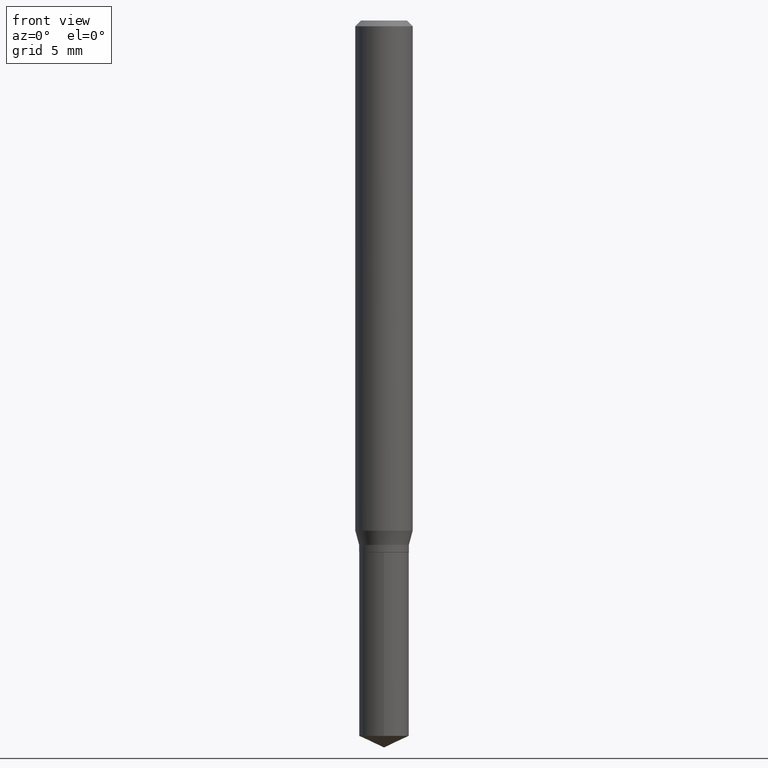
[diagram: clean part render]
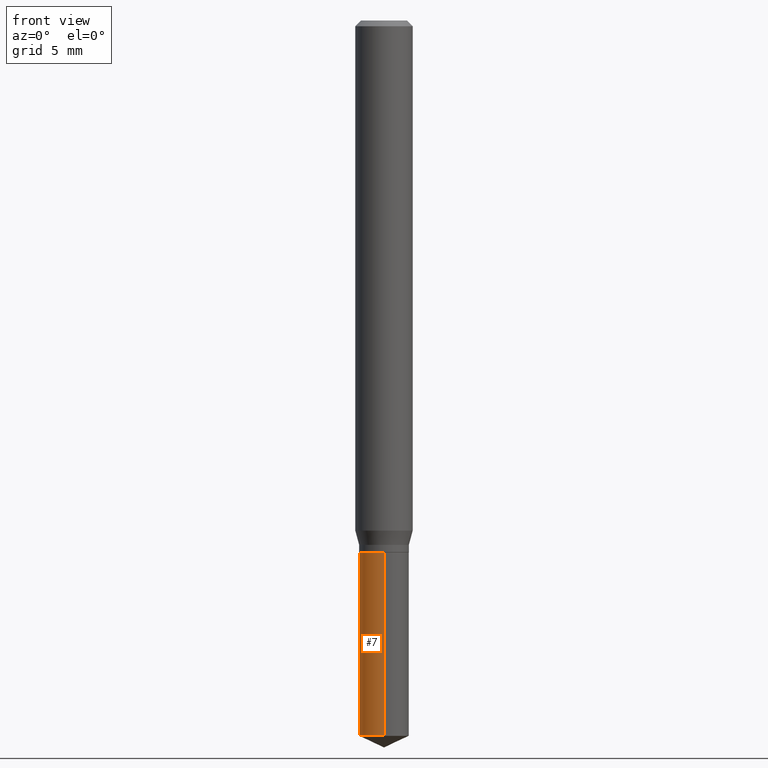
[diagram: same view with one face highlighted and labeled with its STEP entity id]
A machine part, front view. The second image highlights one B-rep face of the part: STEP entity #7.
In plain terms, the highlighted cylindrical surface (edge-blend (fillet) strip) has radius 1.3005 mm, axis along (-0, 0, 1).
Its self-contained STEP definition (entity closure, byte-faithful):
#7 = ADVANCED_FACE ( 'NONE', ( #148 ), #306, .T. ) ;
#30 = VERTEX_POINT ( 'NONE', #423 ) ;
#32 = DIRECTION ( 'NONE',  ( -6.982962677686265133E-15, -1.000000000000000000, 2.667820306312756424E-15 ) ) ;
#40 = DIRECTION ( 'NONE',  ( -2.445458899330790108E-29, 3.491495526022433205E-15, 1.000000000000000000 ) ) ;
#50 = CIRCLE ( 'NONE', #458, 0.05120000000000000939 ) ;
#70 = CARTESIAN_POINT ( 'NONE',  ( 2.676565608369631794E-29, -3.821426325363822773E-15, -1.094499999999999806 ) ) ;
#81 = AXIS2_PLACEMENT_3D ( 'NONE', #381, #40, #431 ) ;
#84 = DIRECTION ( 'NONE',  ( -2.445458899330790108E-29, 3.491495526022433599E-15, 1.000000000000000000 ) ) ;
#91 = LINE ( 'NONE', #253, #433 ) ;
#113 = EDGE_CURVE ( 'NONE', #30, #412, #297, .T. ) ;
#118 = CARTESIAN_POINT ( 'NONE',  ( -3.575276890975009060E-16, -0.05120000000000516499, -1.472225047902463890 ) ) ;
#131 = VERTEX_POINT ( 'NONE', #118 ) ;
#133 = ORIENTED_EDGE ( 'NONE', *, *, #179, .T. ) ;
#148 = FACE_OUTER_BOUND ( 'NONE', #348, .T. ) ;
#161 = DIRECTION ( 'NONE',  ( -2.445458899330790108E-29, 3.491495526022433205E-15, 1.000000000000000000 ) ) ;
#174 = ORIENTED_EDGE ( 'NONE', *, *, #113, .F. ) ;
#178 = VERTEX_POINT ( 'NONE', #196 ) ;
#179 = EDGE_CURVE ( 'NONE', #178, #131, #50, .T. ) ;
#196 = CARTESIAN_POINT ( 'NONE',  ( 3.637978807092074523E-16, 0.05119999999999487461, -1.472225047902464334 ) ) ;
#209 = CARTESIAN_POINT ( 'NONE',  ( -3.575276890975101258E-16, -0.05120000000000383272, -1.094499999999999806 ) ) ;
#253 = CARTESIAN_POINT ( 'NONE',  ( -3.575276890975101258E-16, -0.05120000000000383272, -1.094499999999999806 ) ) ;
#275 = CARTESIAN_POINT ( 'NONE',  ( 3.637978807091980353E-16, 0.05119999999999617912, -1.094500000000000028 ) ) ;
#297 = CIRCLE ( 'NONE', #81, 0.05120000000000000939 ) ;
#302 = EDGE_CURVE ( 'NONE', #178, #30, #391, .T. ) ;
#306 = CYLINDRICAL_SURFACE ( 'NONE', #470, 0.05120000000000000939 ) ;
#316 = CARTESIAN_POINT ( 'NONE',  ( 3.600276688262861312E-29, -5.140251640181885643E-15, -1.472225047902464112 ) ) ;
#331 = ORIENTED_EDGE ( 'NONE', *, *, #302, .F. ) ;
#348 = EDGE_LOOP ( 'NONE', ( #331, #133, #404, #174 ) ) ;
#355 = DIRECTION ( 'NONE',  ( -6.982962677686265133E-15, -1.000000000000000000, 5.335640612625512847E-15 ) ) ;
#381 = CARTESIAN_POINT ( 'NONE',  ( 2.676565608369631794E-29, -3.821426325363822773E-15, -1.094499999999999806 ) ) ;
#391 = LINE ( 'NONE', #275, #426 ) ;
#402 = EDGE_CURVE ( 'NONE', #131, #412, #91, .T. ) ;
#404 = ORIENTED_EDGE ( 'NONE', *, *, #402, .T. ) ;
#407 = DIRECTION ( 'NONE',  ( -2.445458899330790108E-29, 3.491495526022433599E-15, 1.000000000000000000 ) ) ;
#412 = VERTEX_POINT ( 'NONE', #209 ) ;
#421 = DIRECTION ( 'NONE',  ( -2.445458899330790108E-29, 3.491495526022433205E-15, 1.000000000000000000 ) ) ;
#423 = CARTESIAN_POINT ( 'NONE',  ( 3.637978807092073044E-16, 0.05119999999999617912, -1.094500000000000028 ) ) ;
#426 = VECTOR ( 'NONE', #84, 39.37007874015748143 ) ;
#431 = DIRECTION ( 'NONE',  ( -6.982962677686265133E-15, -1.000000000000000000, 2.667820306312756424E-15 ) ) ;
#433 = VECTOR ( 'NONE', #407, 39.37007874015748143 ) ;
#458 = AXIS2_PLACEMENT_3D ( 'NONE', #316, #161, #355 ) ;
#470 = AXIS2_PLACEMENT_3D ( 'NONE', #70, #421, #32 ) ;